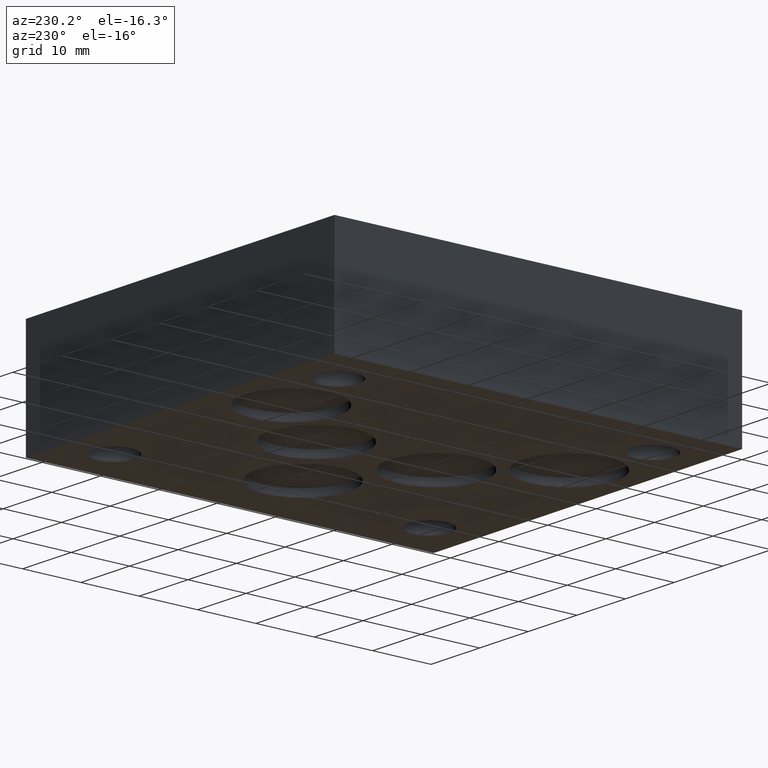
[diagram: clean part render]
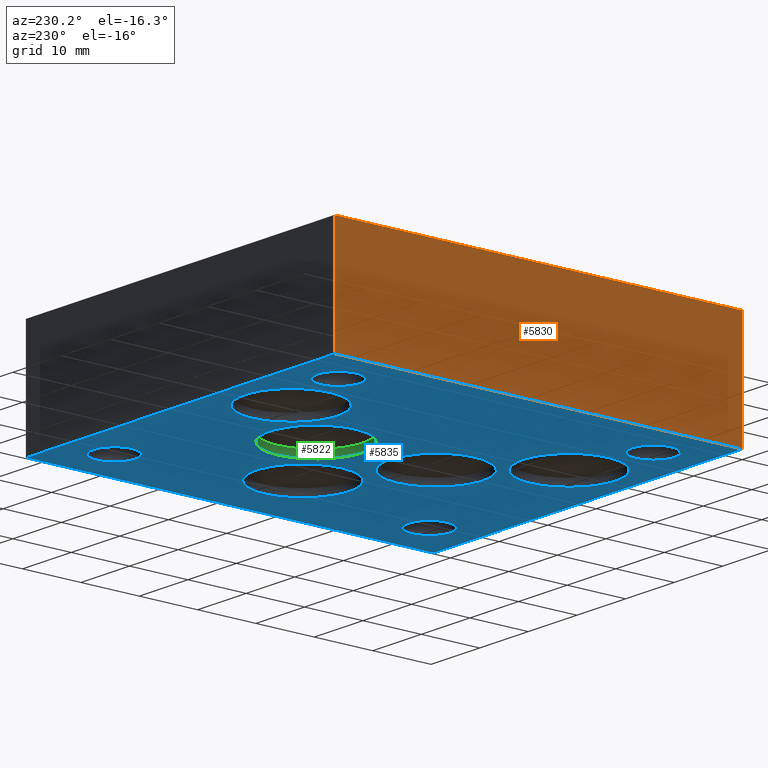
[diagram: same view with three faces highlighted in distinct colors, each labeled with its STEP entity id]
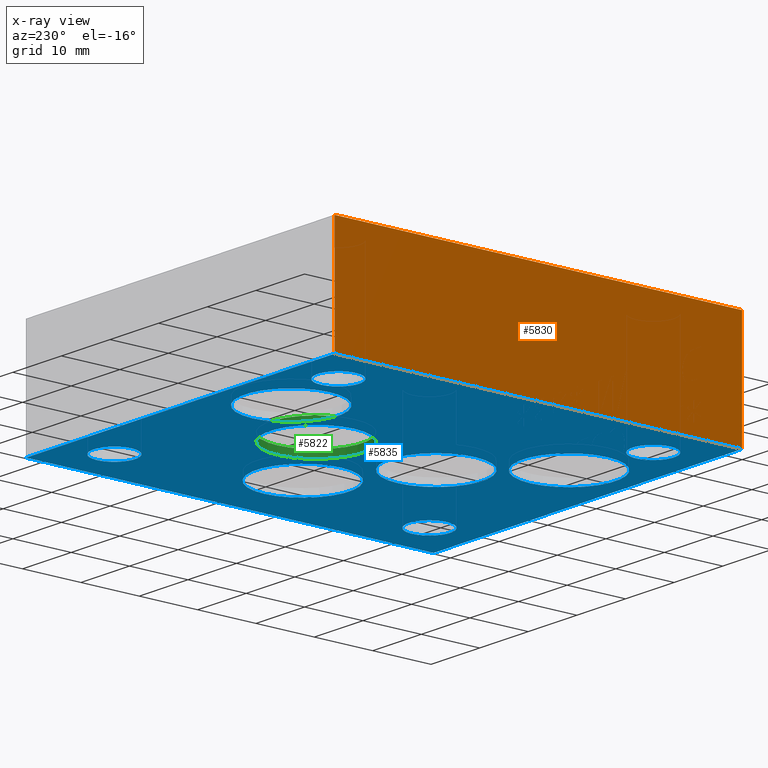
[diagram: x-ray of the same camera — body ghosted, the three highlighted faces saturated]
A machine part, auxiliary view with three faces highlighted in distinct colors.
The next image is the same camera in x-ray (body ghosted, the three faces saturated) — at least one of them is partly hidden behind the body in this view.
Their STEP definitions:

[orange] entity #5830 — the highlighted planar face has unit normal (-1, 0, 0).
#293=PLANE('',#6093);
#583=FACE_OUTER_BOUND('',#896,.T.);
#896=EDGE_LOOP('',(#5164,#5165,#5166,#5167));
#1136=LINE('',#8772,#1752);
#1523=LINE('',#9767,#2139);
#1524=LINE('',#9769,#2140);
#1525=LINE('',#9770,#2141);
#1752=VECTOR('',#6440,10.);
#2139=VECTOR('',#7197,10.);
#2140=VECTOR('',#7198,10.);
#2141=VECTOR('',#7199,10.);
#2525=VERTEX_POINT('',#8765);
#2528=VERTEX_POINT('',#8770);
#2823=VERTEX_POINT('',#9766);
#2824=VERTEX_POINT('',#9768);
#3178=EDGE_CURVE('',#2525,#2528,#1136,.T.);
#3613=EDGE_CURVE('',#2823,#2525,#1523,.T.);
#3614=EDGE_CURVE('',#2824,#2528,#1524,.T.);
#3615=EDGE_CURVE('',#2823,#2824,#1525,.T.);
#5164=ORIENTED_EDGE('',*,*,#3613,.T.);
#5165=ORIENTED_EDGE('',*,*,#3178,.T.);
#5166=ORIENTED_EDGE('',*,*,#3614,.F.);
#5167=ORIENTED_EDGE('',*,*,#3615,.F.);
#5830=ADVANCED_FACE('',(#583),#293,.T.);
#6093=AXIS2_PLACEMENT_3D('',#9765,#7195,#7196);
#6440=DIRECTION('',(0.,0.,1.));
#7195=DIRECTION('center_axis',(-1.,0.,0.));
#7196=DIRECTION('ref_axis',(0.,-1.,0.));
#7197=DIRECTION('',(0.,-1.,0.));
#7198=DIRECTION('',(0.,-1.,0.));
#7199=DIRECTION('',(0.,0.,1.));
#8765=CARTESIAN_POINT('',(0.,0.,0.));
#8770=CARTESIAN_POINT('',(0.,0.,19.05));
#8772=CARTESIAN_POINT('',(0.,0.,0.));
#9765=CARTESIAN_POINT('Origin',(0.,69.85,0.));
#9766=CARTESIAN_POINT('',(0.,69.85,0.));
#9767=CARTESIAN_POINT('',(0.,69.85,0.));
#9768=CARTESIAN_POINT('',(0.,69.85,19.05));
#9769=CARTESIAN_POINT('',(0.,69.85,19.05));
#9770=CARTESIAN_POINT('',(0.,69.85,0.));

[blue] entity #5835 — the highlighted planar face has unit normal (0, 0, 1).
#14=CIRCLE('',#6048,7.9375);
#15=CIRCLE('',#6049,7.9375);
#18=CIRCLE('',#6054,7.9375);
#19=CIRCLE('',#6055,7.9375);
#22=CIRCLE('',#6060,7.9375);
#23=CIRCLE('',#6061,7.9375);
#26=CIRCLE('',#6066,7.9375);
#27=CIRCLE('',#6067,7.9375);
#30=CIRCLE('',#6072,7.9375);
#31=CIRCLE('',#6073,7.9375);
#34=CIRCLE('',#6078,3.5687);
#35=CIRCLE('',#6079,3.5687);
#37=CIRCLE('',#6082,3.5687);
#38=CIRCLE('',#6083,3.5687);
#40=CIRCLE('',#6086,3.5687);
#41=CIRCLE('',#6087,3.5687);
#43=CIRCLE('',#6090,3.5687);
#44=CIRCLE('',#6091,3.5687);
#82=FACE_BOUND('',#906,.T.);
#83=FACE_BOUND('',#907,.T.);
#84=FACE_BOUND('',#908,.T.);
#85=FACE_BOUND('',#909,.T.);
#86=FACE_BOUND('',#910,.T.);
#87=FACE_BOUND('',#911,.T.);
#88=FACE_BOUND('',#912,.T.);
#89=FACE_BOUND('',#913,.T.);
#90=FACE_BOUND('',#914,.T.);
#298=PLANE('',#6098);
#588=FACE_OUTER_BOUND('',#905,.T.);
#905=EDGE_LOOP('',(#5187,#5188,#5189,#5190));
#906=EDGE_LOOP('',(#5191,#5192));
#907=EDGE_LOOP('',(#5193,#5194));
#908=EDGE_LOOP('',(#5195,#5196));
#909=EDGE_LOOP('',(#5197,#5198));
#910=EDGE_LOOP('',(#5199,#5200));
#911=EDGE_LOOP('',(#5201,#5202));
#912=EDGE_LOOP('',(#5203,#5204));
#913=EDGE_LOOP('',(#5205,#5206));
#914=EDGE_LOOP('',(#5207,#5208));
#1133=LINE('',#8767,#1749);
#1523=LINE('',#9767,#2139);
#1526=LINE('',#9773,#2142);
#1529=LINE('',#9778,#2145);
#1749=VECTOR('',#6437,10.);
#2139=VECTOR('',#7197,10.);
#2142=VECTOR('',#7202,10.);
#2145=VECTOR('',#7207,10.);
#2525=VERTEX_POINT('',#8765);
#2526=VERTEX_POINT('',#8766);
#2791=VERTEX_POINT('',#9679);
#2792=VERTEX_POINT('',#9680);
#2795=VERTEX_POINT('',#9690);
#2796=VERTEX_POINT('',#9691);
#2799=VERTEX_POINT('',#9701);
#2800=VERTEX_POINT('',#9702);
#2803=VERTEX_POINT('',#9712);
#2804=VERTEX_POINT('',#9713);
#2807=VERTEX_POINT('',#9723);
#2808=VERTEX_POINT('',#9724);
#2811=VERTEX_POINT('',#9734);
#2812=VERTEX_POINT('',#9735);
#2814=VERTEX_POINT('',#9742);
#2815=VERTEX_POINT('',#9743);
#2817=VERTEX_POINT('',#9750);
#2818=VERTEX_POINT('',#9751);
#2820=VERTEX_POINT('',#9758);
#2821=VERTEX_POINT('',#9759);
#2823=VERTEX_POINT('',#9766);
#2825=VERTEX_POINT('',#9772);
#3175=EDGE_CURVE('',#2525,#2526,#1133,.T.);
#3572=EDGE_CURVE('',#2791,#2792,#14,.T.);
#3573=EDGE_CURVE('',#2792,#2791,#15,.T.);
#3577=EDGE_CURVE('',#2795,#2796,#18,.T.);
#3578=EDGE_CURVE('',#2796,#2795,#19,.T.);
#3582=EDGE_CURVE('',#2799,#2800,#22,.T.);
#3583=EDGE_CURVE('',#2800,#2799,#23,.T.);
#3587=EDGE_CURVE('',#2803,#2804,#26,.T.);
#3588=EDGE_CURVE('',#2804,#2803,#27,.T.);
#3592=EDGE_CURVE('',#2807,#2808,#30,.T.);
#3593=EDGE_CURVE('',#2808,#2807,#31,.T.);
#3597=EDGE_CURVE('',#2811,#2812,#34,.T.);
#3598=EDGE_CURVE('',#2812,#2811,#35,.T.);
#3601=EDGE_CURVE('',#2814,#2815,#37,.T.);
#3602=EDGE_CURVE('',#2815,#2814,#38,.T.);
#3605=EDGE_CURVE('',#2817,#2818,#40,.T.);
#3606=EDGE_CURVE('',#2818,#2817,#41,.T.);
#3609=EDGE_CURVE('',#2820,#2821,#43,.T.);
#3610=EDGE_CURVE('',#2821,#2820,#44,.T.);
#3613=EDGE_CURVE('',#2823,#2525,#1523,.T.);
#3616=EDGE_CURVE('',#2825,#2823,#1526,.T.);
#3619=EDGE_CURVE('',#2526,#2825,#1529,.T.);
#5187=ORIENTED_EDGE('',*,*,#3175,.F.);
#5188=ORIENTED_EDGE('',*,*,#3613,.F.);
#5189=ORIENTED_EDGE('',*,*,#3616,.F.);
#5190=ORIENTED_EDGE('',*,*,#3619,.F.);
#5191=ORIENTED_EDGE('',*,*,#3572,.T.);
#5192=ORIENTED_EDGE('',*,*,#3573,.T.);
#5193=ORIENTED_EDGE('',*,*,#3577,.T.);
#5194=ORIENTED_EDGE('',*,*,#3578,.T.);
#5195=ORIENTED_EDGE('',*,*,#3582,.T.);
#5196=ORIENTED_EDGE('',*,*,#3583,.T.);
#5197=ORIENTED_EDGE('',*,*,#3587,.T.);
#5198=ORIENTED_EDGE('',*,*,#3588,.T.);
#5199=ORIENTED_EDGE('',*,*,#3592,.T.);
#5200=ORIENTED_EDGE('',*,*,#3593,.T.);
#5201=ORIENTED_EDGE('',*,*,#3597,.T.);
#5202=ORIENTED_EDGE('',*,*,#3598,.T.);
#5203=ORIENTED_EDGE('',*,*,#3601,.T.);
#5204=ORIENTED_EDGE('',*,*,#3602,.T.);
#5205=ORIENTED_EDGE('',*,*,#3605,.T.);
#5206=ORIENTED_EDGE('',*,*,#3606,.T.);
#5207=ORIENTED_EDGE('',*,*,#3609,.T.);
#5208=ORIENTED_EDGE('',*,*,#3610,.T.);
#5835=ADVANCED_FACE('',(#588,#82,#83,#84,#85,#86,#87,#88,#89,#90),#298,
 .F.);
#6048=AXIS2_PLACEMENT_3D('',#9681,#7096,#7097);
#6049=AXIS2_PLACEMENT_3D('',#9682,#7098,#7099);
#6054=AXIS2_PLACEMENT_3D('',#9692,#7109,#7110);
#6055=AXIS2_PLACEMENT_3D('',#9693,#7111,#7112);
#6060=AXIS2_PLACEMENT_3D('',#9703,#7122,#7123);
#6061=AXIS2_PLACEMENT_3D('',#9704,#7124,#7125);
#6066=AXIS2_PLACEMENT_3D('',#9714,#7135,#7136);
#6067=AXIS2_PLACEMENT_3D('',#9715,#7137,#7138);
#6072=AXIS2_PLACEMENT_3D('',#9725,#7148,#7149);
#6073=AXIS2_PLACEMENT_3D('',#9726,#7150,#7151);
#6078=AXIS2_PLACEMENT_3D('',#9736,#7161,#7162);
#6079=AXIS2_PLACEMENT_3D('',#9737,#7163,#7164);
#6082=AXIS2_PLACEMENT_3D('',#9744,#7170,#7171);
#6083=AXIS2_PLACEMENT_3D('',#9745,#7172,#7173);
#6086=AXIS2_PLACEMENT_3D('',#9752,#7179,#7180);
#6087=AXIS2_PLACEMENT_3D('',#9753,#7181,#7182);
#6090=AXIS2_PLACEMENT_3D('',#9760,#7188,#7189);
#6091=AXIS2_PLACEMENT_3D('',#9761,#7190,#7191);
#6098=AXIS2_PLACEMENT_3D('',#9782,#7213,#7214);
#6437=DIRECTION('',(1.,0.,0.));
#7096=DIRECTION('center_axis',(0.,0.,1.));
#7097=DIRECTION('ref_axis',(1.,0.,0.));
#7098=DIRECTION('center_axis',(0.,0.,1.));
#7099=DIRECTION('ref_axis',(1.,0.,0.));
#7109=DIRECTION('center_axis',(0.,0.,1.));
#7110=DIRECTION('ref_axis',(1.,0.,0.));
#7111=DIRECTION('center_axis',(0.,0.,1.));
#7112=DIRECTION('ref_axis',(1.,0.,0.));
#7122=DIRECTION('center_axis',(0.,0.,1.));
#7123=DIRECTION('ref_axis',(1.,0.,0.));
#7124=DIRECTION('center_axis',(0.,0.,1.));
#7125=DIRECTION('ref_axis',(1.,0.,0.));
#7135=DIRECTION('center_axis',(0.,0.,1.));
#7136=DIRECTION('ref_axis',(1.,0.,0.));
#7137=DIRECTION('center_axis',(0.,0.,1.));
#7138=DIRECTION('ref_axis',(1.,0.,0.));
#7148=DIRECTION('center_axis',(0.,0.,1.));
#7149=DIRECTION('ref_axis',(1.,0.,0.));
#7150=DIRECTION('center_axis',(0.,0.,1.));
#7151=DIRECTION('ref_axis',(1.,0.,0.));
#7161=DIRECTION('center_axis',(0.,0.,1.));
#7162=DIRECTION('ref_axis',(1.,0.,0.));
#7163=DIRECTION('center_axis',(0.,0.,1.));
#7164=DIRECTION('ref_axis',(1.,0.,0.));
#7170=DIRECTION('center_axis',(0.,0.,1.));
#7171=DIRECTION('ref_axis',(1.,0.,0.));
#7172=DIRECTION('center_axis',(0.,0.,1.));
#7173=DIRECTION('ref_axis',(1.,0.,0.));
#7179=DIRECTION('center_axis',(0.,0.,1.));
#7180=DIRECTION('ref_axis',(1.,0.,0.));
#7181=DIRECTION('center_axis',(0.,0.,1.));
#7182=DIRECTION('ref_axis',(1.,0.,0.));
#7188=DIRECTION('center_axis',(0.,0.,1.));
#7189=DIRECTION('ref_axis',(1.,0.,0.));
#7190=DIRECTION('center_axis',(0.,0.,1.));
#7191=DIRECTION('ref_axis',(1.,0.,0.));
#7197=DIRECTION('',(0.,-1.,0.));
#7202=DIRECTION('',(-1.,0.,0.));
#7207=DIRECTION('',(0.,1.,0.));
#7213=DIRECTION('center_axis',(0.,0.,1.));
#7214=DIRECTION('ref_axis',(1.,0.,0.));
#8765=CARTESIAN_POINT('',(0.,0.,0.));
#8766=CARTESIAN_POINT('',(63.5,0.,0.));
#8767=CARTESIAN_POINT('',(0.,0.,0.));
#9679=CARTESIAN_POINT('',(41.3131,24.6126,0.));
#9680=CARTESIAN_POINT('',(25.4381,24.6126,0.));
#9681=CARTESIAN_POINT('Origin',(33.3756,24.6126,0.));
#9682=CARTESIAN_POINT('Origin',(33.3756,24.6126,0.));
#9690=CARTESIAN_POINT('',(30.1879,58.7502,0.));
#9691=CARTESIAN_POINT('',(14.3129,58.7502,0.));
#9692=CARTESIAN_POINT('Origin',(22.2504,58.7502,0.));
#9693=CARTESIAN_POINT('Origin',(22.2504,58.7502,0.));
#9701=CARTESIAN_POINT('',(56.4007,34.925,0.));
#9702=CARTESIAN_POINT('',(40.5257,34.925,0.));
#9703=CARTESIAN_POINT('Origin',(48.4632,34.925,0.));
#9704=CARTESIAN_POINT('Origin',(48.4632,34.925,0.));
#9712=CARTESIAN_POINT('',(41.2877,45.2374,0.));
#9713=CARTESIAN_POINT('',(25.4127,45.2374,0.));
#9714=CARTESIAN_POINT('Origin',(33.3502,45.2374,0.));
#9715=CARTESIAN_POINT('Origin',(33.3502,45.2374,0.));
#9723=CARTESIAN_POINT('',(30.1879,11.1252,0.));
#9724=CARTESIAN_POINT('',(14.3129,11.1252,0.));
#9725=CARTESIAN_POINT('Origin',(22.2504,11.1252,0.));
#9726=CARTESIAN_POINT('Origin',(22.2504,11.1252,0.));
#9734=CARTESIAN_POINT('',(58.3565,7.9502,0.));
#9735=CARTESIAN_POINT('',(51.2191,7.9502,0.));
#9736=CARTESIAN_POINT('Origin',(54.7878,7.9502,0.));
#9737=CARTESIAN_POINT('Origin',(54.7878,7.9502,0.));
#9742=CARTESIAN_POINT('',(12.3063,61.9252,0.));
#9743=CARTESIAN_POINT('',(5.1689,61.9252,0.));
#9744=CARTESIAN_POINT('Origin',(8.7376,61.9252,0.));
#9745=CARTESIAN_POINT('Origin',(8.7376,61.9252,0.));
#9750=CARTESIAN_POINT('',(58.3565,61.9379,0.));
#9751=CARTESIAN_POINT('',(51.2191,61.9379,0.));
#9752=CARTESIAN_POINT('Origin',(54.7878,61.9379,0.));
#9753=CARTESIAN_POINT('Origin',(54.7878,61.9379,0.));
#9758=CARTESIAN_POINT('',(12.319,7.9502,0.));
#9759=CARTESIAN_POINT('',(5.1816,7.9502,0.));
#9760=CARTESIAN_POINT('Origin',(8.7503,7.9502,0.));
#9761=CARTESIAN_POINT('Origin',(8.7503,7.9502,0.));
#9766=CARTESIAN_POINT('',(0.,69.85,0.));
#9767=CARTESIAN_POINT('',(0.,69.85,0.));
#9772=CARTESIAN_POINT('',(63.5,69.85,0.));
#9773=CARTESIAN_POINT('',(63.5,69.85,0.));
#9778=CARTESIAN_POINT('',(63.5,0.,0.));
#9782=CARTESIAN_POINT('Origin',(31.75,34.925,0.));

[green] entity #5822 — the highlighted cylindrical surface (bore or boss wall) has radius 7.9375 mm, axis along (0, 0, -1).
#26=CIRCLE('',#6066,7.9375);
#27=CIRCLE('',#6067,7.9375);
#28=CIRCLE('',#6068,7.9375);
#29=CIRCLE('',#6069,7.9375);
#49=CYLINDRICAL_SURFACE('',#6065,7.9375);
#575=FACE_OUTER_BOUND('',#888,.T.);
#888=EDGE_LOOP('',(#5128,#5129,#5130,#5131,#5132,#5133));
#1517=LINE('',#9717,#2133);
#2133=VECTOR('',#7139,7.9375);
#2803=VERTEX_POINT('',#9712);
#2804=VERTEX_POINT('',#9713);
#2805=VERTEX_POINT('',#9716);
#2806=VERTEX_POINT('',#9718);
#3587=EDGE_CURVE('',#2803,#2804,#26,.T.);
#3588=EDGE_CURVE('',#2804,#2803,#27,.T.);
#3589=EDGE_CURVE('',#2804,#2805,#1517,.T.);
#3590=EDGE_CURVE('',#2806,#2805,#28,.T.);
#3591=EDGE_CURVE('',#2805,#2806,#29,.T.);
#5128=ORIENTED_EDGE('',*,*,#3587,.F.);
#5129=ORIENTED_EDGE('',*,*,#3588,.F.);
#5130=ORIENTED_EDGE('',*,*,#3589,.T.);
#5131=ORIENTED_EDGE('',*,*,#3590,.F.);
#5132=ORIENTED_EDGE('',*,*,#3591,.F.);
#5133=ORIENTED_EDGE('',*,*,#3589,.F.);
#5822=ADVANCED_FACE('',(#575),#49,.F.);
#6065=AXIS2_PLACEMENT_3D('',#9711,#7133,#7134);
#6066=AXIS2_PLACEMENT_3D('',#9714,#7135,#7136);
#6067=AXIS2_PLACEMENT_3D('',#9715,#7137,#7138);
#6068=AXIS2_PLACEMENT_3D('',#9719,#7140,#7141);
#6069=AXIS2_PLACEMENT_3D('',#9720,#7142,#7143);
#7133=DIRECTION('center_axis',(0.,0.,-1.));
#7134=DIRECTION('ref_axis',(1.,0.,0.));
#7135=DIRECTION('center_axis',(0.,0.,1.));
#7136=DIRECTION('ref_axis',(1.,0.,0.));
#7137=DIRECTION('center_axis',(0.,0.,1.));
#7138=DIRECTION('ref_axis',(1.,0.,0.));
#7139=DIRECTION('',(0.,0.,1.));
#7140=DIRECTION('center_axis',(0.,0.,-1.));
#7141=DIRECTION('ref_axis',(1.,0.,0.));
#7142=DIRECTION('center_axis',(0.,0.,-1.));
#7143=DIRECTION('ref_axis',(1.,0.,0.));
#9711=CARTESIAN_POINT('Origin',(33.3502,45.2374,0.6604));
#9712=CARTESIAN_POINT('',(41.2877,45.2374,0.));
#9713=CARTESIAN_POINT('',(25.4127,45.2374,0.));
#9714=CARTESIAN_POINT('Origin',(33.3502,45.2374,0.));
#9715=CARTESIAN_POINT('Origin',(33.3502,45.2374,0.));
#9716=CARTESIAN_POINT('',(25.4127,45.2374,1.3208));
#9717=CARTESIAN_POINT('',(25.4127,45.2374,0.6604));
#9718=CARTESIAN_POINT('',(41.2877,45.2374,1.3208));
#9719=CARTESIAN_POINT('Origin',(33.3502,45.2374,1.3208));
#9720=CARTESIAN_POINT('Origin',(33.3502,45.2374,1.3208));